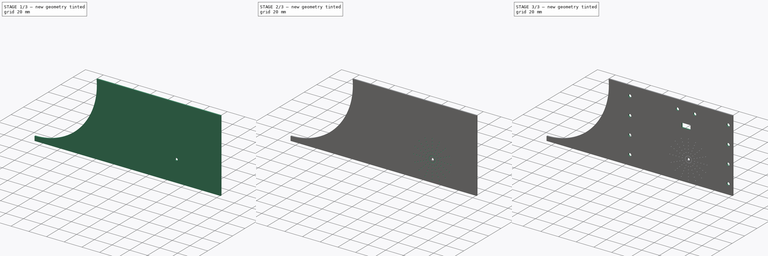
[diagram: build sequence overview — one tinted view per stage of 3, left to right]
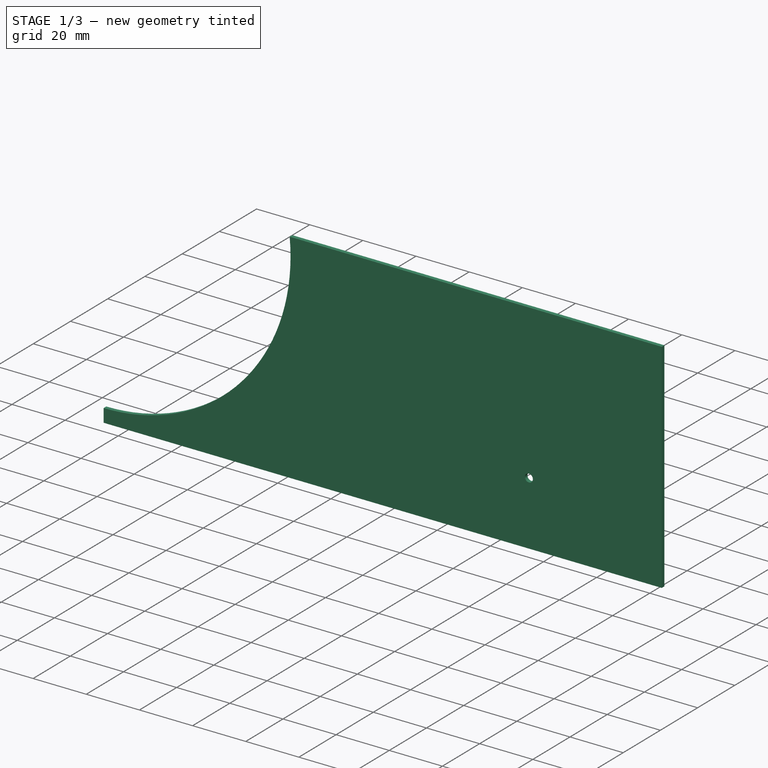
[diagram: stage 1 of 3 — iso view after this stage's code; geometry added in this stage tinted green]
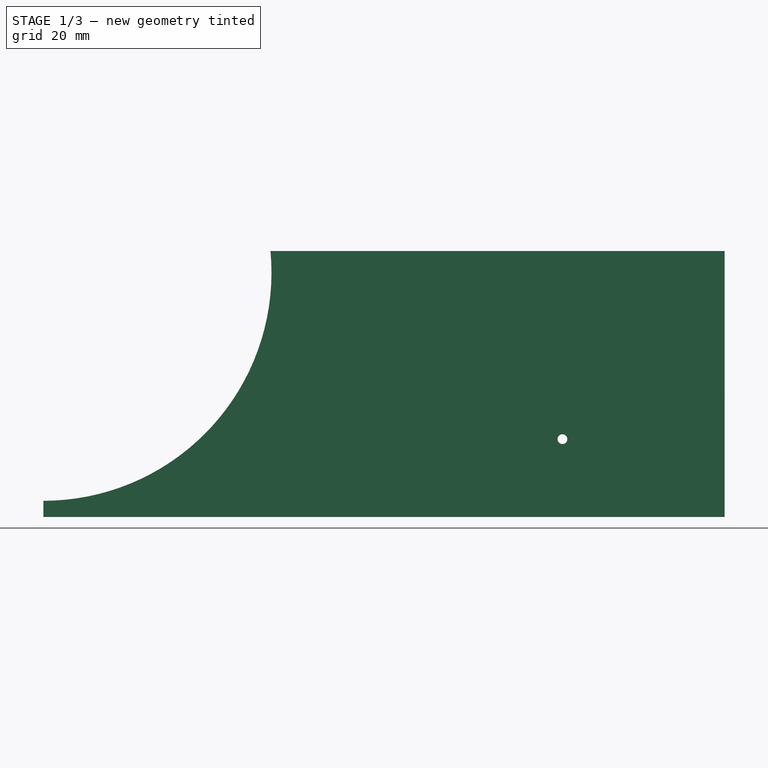
[diagram: stage 1 of 3 — front view after this stage's code; geometry added in this stage tinted green]
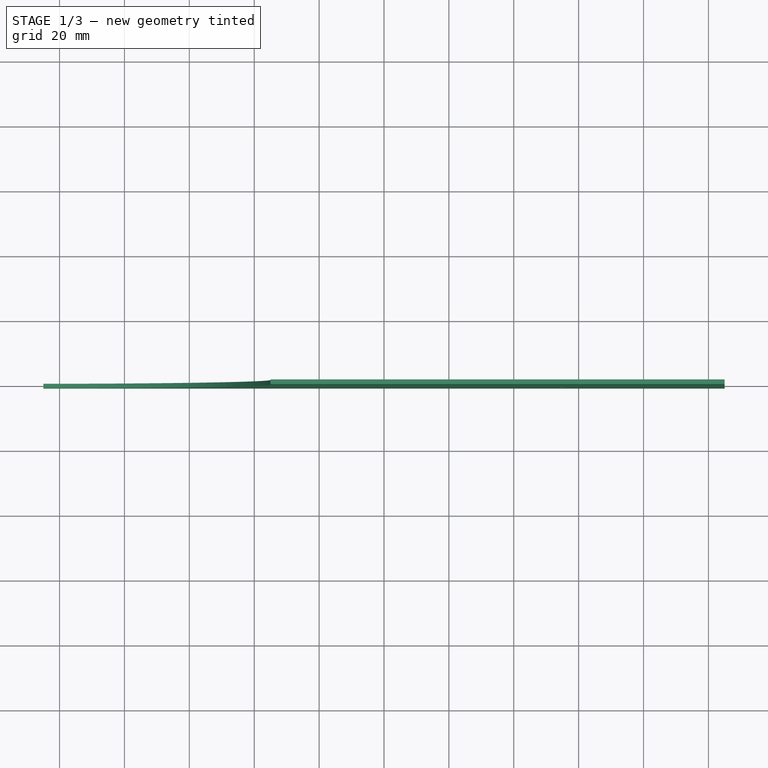
[diagram: stage 1 of 3 — top view after this stage's code; geometry added in this stage tinted green]
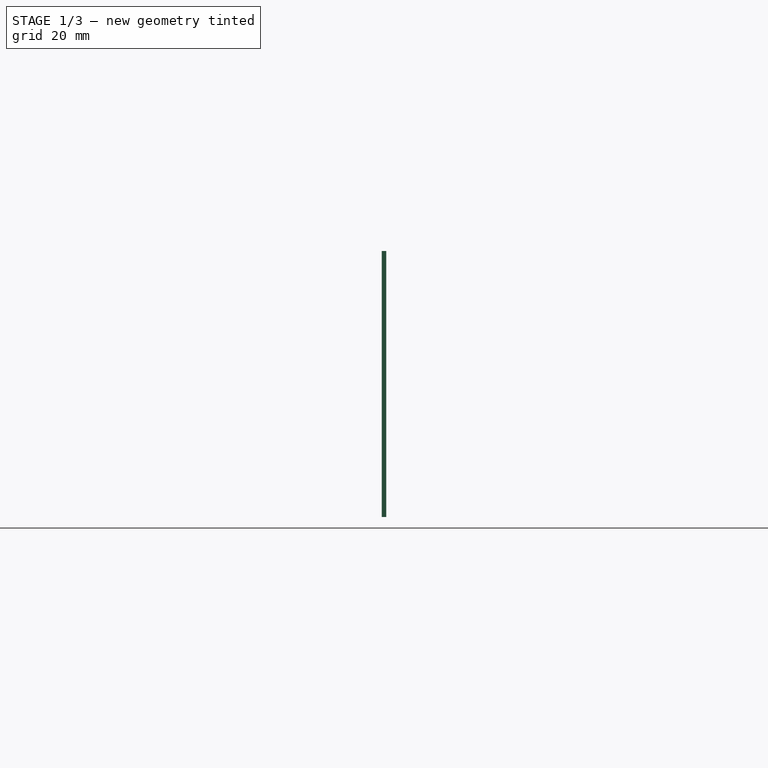
[diagram: stage 1 of 3 — right view after this stage's code; geometry added in this stage tinted green]
FCSTD DOCUMENT  (FreeCAD 1.0R39109 (Git))
Label: wall_curve_speaker
License: All rights reserved
LicenseURL: https://en.wikipedia.org/wiki/All_rights_reserved
objects: Sketcher::SketchObject×6, PartDesign::Pocket×4, PartDesign::Pad×1, PartDesign::Line×1, PartDesign::PolarPattern×1, PartDesign::Body×1
note: 31 computed .brp shape members not serialized (recipe doc carries the construction recipe); baked Part::Feature solids carry a one-line shape summary decoded from their .brp

FEATURE [Sketcher::SketchObject] Sketch
  ArcFitTolerance = 1e-06
  AttachmentSupport = -> [XZ_Plane]
  FullyConstrained = true
  MakeInternals = false
  MapMode = 5
  Placement = pos=(0,0,0) rot=(1,0,0;1.5708rad)
  sketch-geometry (15):
    g0: LineSegment [constr] StartX=-105 StartY=40 StartZ=0 EndX=-105 EndY=-40 EndZ=0
    g1: LineSegment [constr] StartX=-105 StartY=-40 StartZ=0 EndX=105 EndY=-40 EndZ=0
    g2: LineSegment [constr] StartX=105 StartY=-40 StartZ=0 EndX=105 EndY=40 EndZ=0
    g3: LineSegment [constr] StartX=105 StartY=40 StartZ=0 EndX=-105 EndY=40 EndZ=0
    g4: GeomPoint [constr] X=0 Y=0 Z=0
    g5: LineSegment [constr] StartX=-105 StartY=41 StartZ=0 EndX=-105 EndY=-41 EndZ=0
    g6: LineSegment [constr] StartX=-105 StartY=-41 StartZ=0 EndX=105 EndY=-41 EndZ=0
    g7: LineSegment [constr] StartX=105 StartY=-41 StartZ=0 EndX=105 EndY=41 EndZ=0
    g8: LineSegment [constr] StartX=105 StartY=41 StartZ=0 EndX=-105 EndY=41 EndZ=0
    g9: GeomPoint [constr] X=0 Y=0 Z=0
    g10: LineSegment StartX=-105 StartY=-41 StartZ=0 EndX=-105 EndY=-36 EndZ=0
    g11: ArcOfCircle CenterX=-105 CenterY=34.3182 CenterZ=0 NormalX=0 NormalY=0 NormalZ=1 AngleXU=0 Radius=70.3182 StartAngle=4.71239 EndAngle=6.37835
    g12: LineSegment StartX=-35 StartY=41 StartZ=0 EndX=105 EndY=41 EndZ=0
    g13: LineSegment StartX=105 StartY=41 StartZ=0 EndX=105 EndY=-41 EndZ=0
    g14: LineSegment StartX=105 StartY=-41 StartZ=0 EndX=-105 EndY=-41 EndZ=0
  constraints (37):
    c: Coincident(g0,g1)
    c: Coincident(g1,g2)
    c: Coincident(g2,g3)
    c: Coincident(g3,g0)
    c: Vertical(g0)
    c: Vertical(g2)
    c: Horizontal(g1)
    c: Horizontal(g3)
    c: Symmetric(g2,g0,g4)
    c: Coincident(g4,g-1)
    c: Coincident(g5,g6)
    c: Coincident(g6,g7)
    c: Coincident(g7,g8)
    c: Coincident(g8,g5)
    c: Vertical(g5)
    c: Vertical(g7)
    c: Horizontal(g6)
    c: Horizontal(g8)
    c: Symmetric(g7,g5,g9)
    c: Coincident(g9,g4)
    c: Vertical(g6,g1)
    c: DistanceY(g2,g2) = 80
    c: DistanceY(g6,g1) = 1
    c: DistanceX(g8,g8) = 210
    c: Coincident(g5,g10)
    c: PointOnObject(g10,g0)
    c: Perpendicular(g10,g11) = 4.71239
    c: Coincident(g11,g12)
    c: PointOnObject(g12,g2)
    c: Horizontal(g12)
    c: Coincident(g12,g13)
    c: Coincident(g13,g6)
    c: Coincident(g13,g14)
    c: Coincident(g14,g10)
    c: PointOnObject(g11,g8)
    c: DistanceX(g12,g12) = 140
    c: DistanceY(g10,g10) = 5
FEATURE [PartDesign::Pad] Pad  label="BasePad"
  Direction = (0,-1,2e-16)
  Length = 0.7
  Length2 = 0.7
  Placement = pos=(0,0,0) rot=(1,0,0;1.5708rad)
  Profile = -> Sketch
  ReferenceAxis = -> Sketch [N_Axis]
  Refine = true
  Suppressed = false
  Type = 4
FEATURE [Sketcher::SketchObject] Sketch001
  ArcFitTolerance = 1e-06
  AttachmentSupport = -> [Pad]
  ExternalGeometry = -> [Pad]
  FullyConstrained = true
  MakeInternals = false
  MapMode = 5
  Placement = pos=(0,-0.7,0) rot=(1,0,0;1.5708rad)
  sketch-geometry (4):
    g0: LineSegment [constr] StartX=105 StartY=-41 StartZ=0 EndX=90 EndY=-41 EndZ=0
    g1: LineSegment [constr] StartX=90 StartY=-41 StartZ=0 EndX=20 EndY=-41 EndZ=0
    g2: Circle CenterX=55 CenterY=-17 CenterZ=0 NormalX=0 NormalY=0 NormalZ=1 AngleXU=0 Radius=1.5
    g3: GeomPoint X=55 Y=-41 Z=0
  constraints (10):
    c: Coincident(g-3,g0)
    c: PointOnObject(g0,g-3)
    c: Coincident(g0,g1)
    c: PointOnObject(g1,g-3)
    c: DistanceX(g0,g0) = 15
    c: DistanceX(g1,g1) = 70
    c: Symmetric(g1,g1,g3)
    c: Vertical(g3,g2)
    c: DistanceY(g3,g2) = 24
    c: Radius(g2) = 1.5
FEATURE [PartDesign::Pocket] Pocket  label="MainSpeakerPocket"
  BaseFeature = -> Pad
  Direction = (0,1,-2e-16)
  Length = 5
  Length2 = 5
  Placement = pos=(0,0,0) rot=(1,0,0;1.5708rad)
  Profile = -> Sketch001
  ReferenceAxis = -> Sketch001 [N_Axis]
  Refine = true
  Suppressed = false
  Type = 1
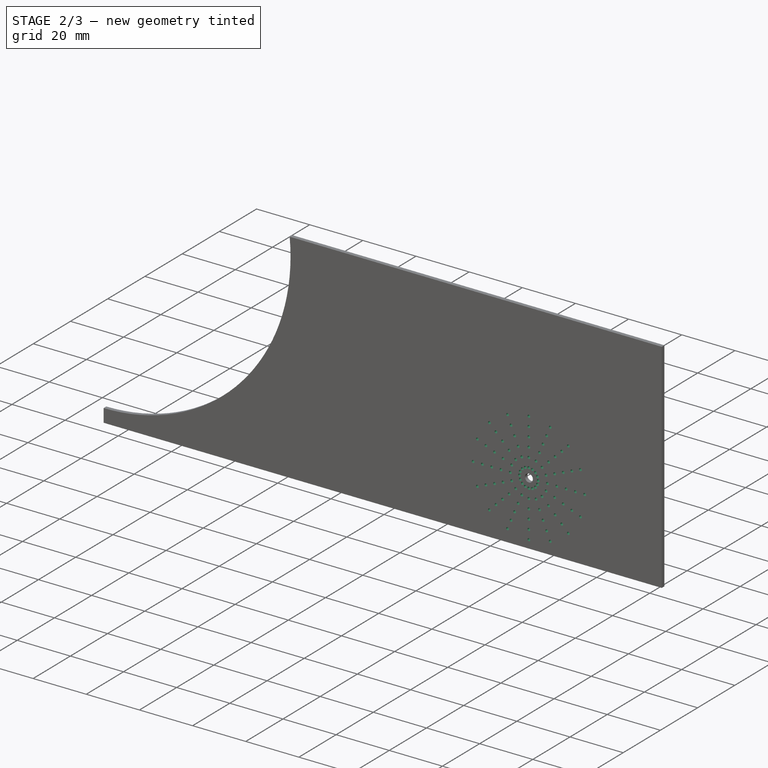
[diagram: stage 2 of 3 — iso view after this stage's code; geometry added in this stage tinted green]
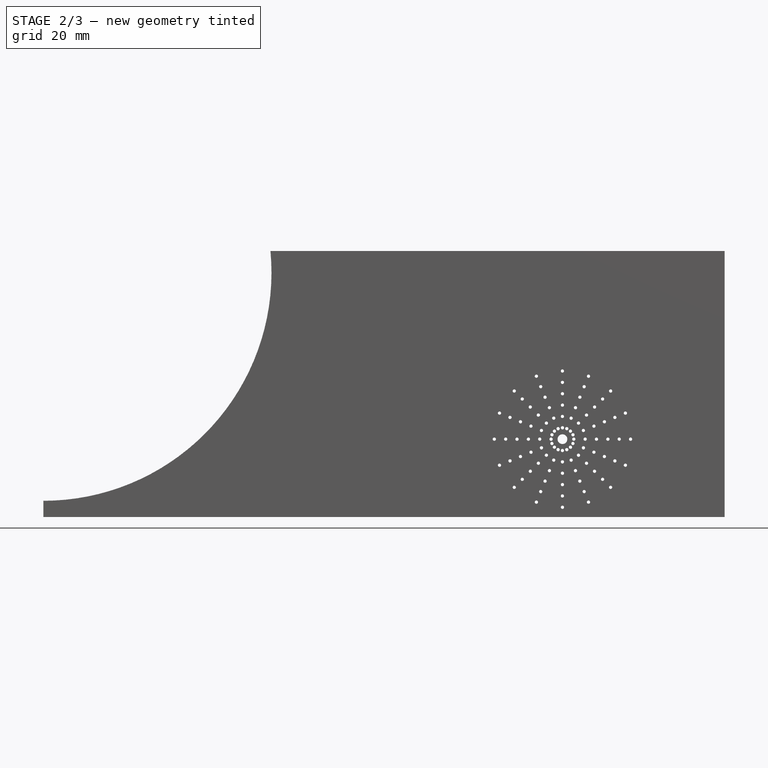
[diagram: stage 2 of 3 — front view after this stage's code; geometry added in this stage tinted green]
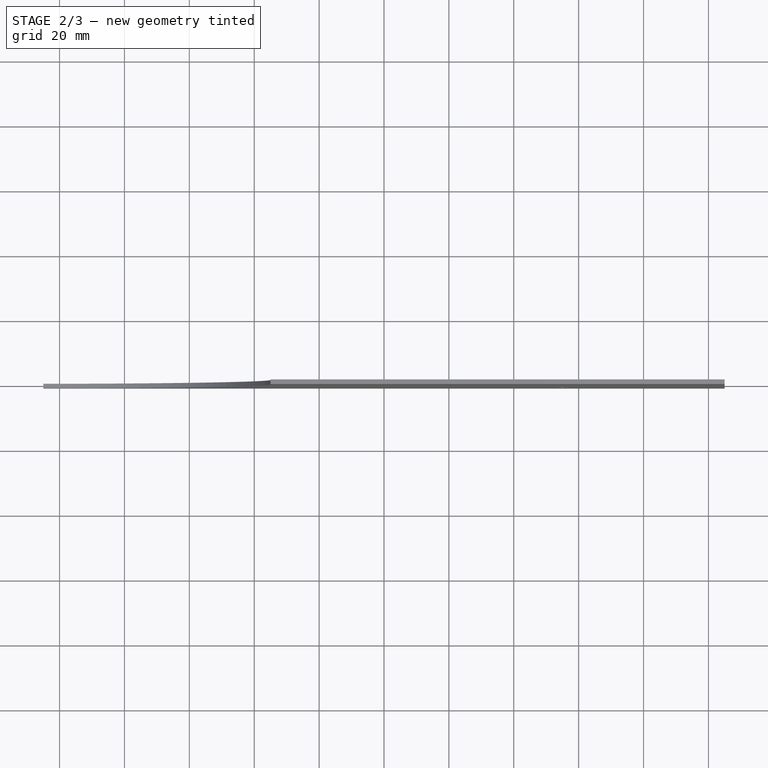
[diagram: stage 2 of 3 — top view after this stage's code; geometry added in this stage tinted green]
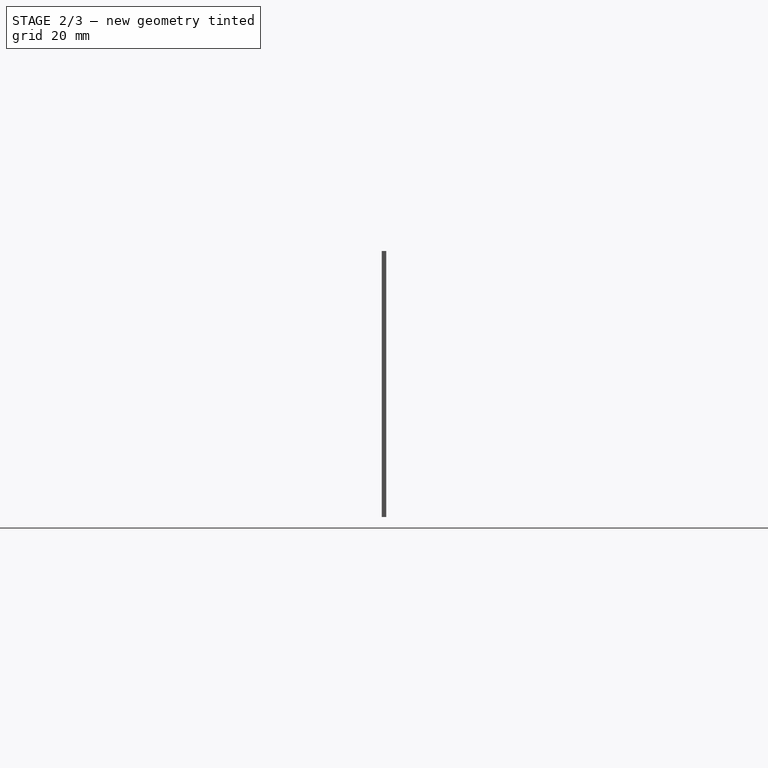
[diagram: stage 2 of 3 — right view after this stage's code; geometry added in this stage tinted green]
FEATURE [Sketcher::SketchObject] Sketch002
  ArcFitTolerance = 1e-06
  AttachmentSupport = -> [Pocket]
  ExternalGeometry = -> [Pocket]
  FullyConstrained = true
  MakeInternals = false
  MapMode = 5
  Placement = pos=(0,-0.7,0) rot=(1,0,0;1.5708rad)
  sketch-geometry (12):
    g0: Circle CenterX=55 CenterY=-20.5 CenterZ=0 NormalX=0 NormalY=0 NormalZ=1 AngleXU=0 Radius=0.5
    g1: Circle CenterX=55 CenterY=-24 CenterZ=0 NormalX=0 NormalY=0 NormalZ=1 AngleXU=0 Radius=0.5
    g2: Circle CenterX=55 CenterY=-27.5 CenterZ=0 NormalX=0 NormalY=0 NormalZ=1 AngleXU=0 Radius=0.5
    g3: Circle CenterX=55 CenterY=-31 CenterZ=0 NormalX=0 NormalY=0 NormalZ=1 AngleXU=0 Radius=0.5
    g4: Circle CenterX=55 CenterY=-34.5 CenterZ=0 NormalX=0 NormalY=0 NormalZ=1 AngleXU=0 Radius=0.5
    g5: LineSegment [constr] StartX=55 StartY=-17 StartZ=0 EndX=55 EndY=-20.5 EndZ=0
    g6: LineSegment [constr] StartX=55 StartY=-20.5 StartZ=0 EndX=55 EndY=-24 EndZ=0
    g7: LineSegment [constr] StartX=55 StartY=-24 StartZ=0 EndX=55 EndY=-27.5 EndZ=0
    g8: LineSegment [constr] StartX=55 StartY=-27.5 StartZ=0 EndX=55 EndY=-31 EndZ=0
    g9: LineSegment [constr] StartX=55 StartY=-31 StartZ=0 EndX=55 EndY=-34.5 EndZ=0
    g10: LineSegment [constr] StartX=55 StartY=-34.5 StartZ=0 EndX=55 EndY=-38 EndZ=0
    g11: Circle CenterX=55 CenterY=-38 CenterZ=0 NormalX=0 NormalY=0 NormalZ=1 AngleXU=0 Radius=0.5
  constraints (30):
    c: Coincident(g5,g-3)
    c: Coincident(g5,g0)
    c: Coincident(g5,g6)
    c: Coincident(g6,g1)
    c: Vertical(g6)
    c: Coincident(g6,g7)
    c: Coincident(g7,g2)
    c: Coincident(g7,g8)
    c: Coincident(g8,g3)
    c: Coincident(g8,g9)
    c: Coincident(g9,g4)
    c: Vertical(g5)
    c: Vertical(g7)
    c: Vertical(g8)
    c: Vertical(g9)
    c: Equal(g9,g8)
    c: Equal(g8,g7)
    c: Equal(g7,g6)
    c: Equal(g6,g5)
    c: Equal(g0,g1)
    c: Equal(g1,g2)
    c: Equal(g2,g3)
    c: Equal(g3,g4)
    c: Radius(g4) = 0.5
    c: Coincident(g10,g4)
    c: Vertical(g10)
    c: Coincident(g11,g10)
    c: Equal(g11,g4)
    c: DistanceY(g10,g10) = 3.5
    c: Equal(g10,g9)
FEATURE [PartDesign::Pocket] Pocket001  label="SpeakerPatternPocket"
  BaseFeature = -> Pocket
  Direction = (0,1,-2e-16)
  Length = 5
  Length2 = 5
  Placement = pos=(0,0,0) rot=(1,0,0;1.5708rad)
  Profile = -> Sketch002
  ReferenceAxis = -> Sketch002 [N_Axis]
  Refine = true
  Suppressed = false
  Type = 1
FEATURE [PartDesign::Line] DatumLine
  AttacherType = Attacher::AttachEngineLine
  AttachmentSupport = -> [Pocket001]
  Length = 20
  MapMode = 19
  Placement = pos=(55,-0.7,-17) rot=(1,0,0;1.5708rad)
  ResizeMode = 0
FEATURE [PartDesign::PolarPattern] PolarPattern  label="SpeakerPattern"
  Angle = 360
  Axis = -> DatumLine
  BaseFeature = -> Pocket001
  Mode = 0
  Occurrences = 16
  Offset = 120
  Originals = -> [Pocket001]
  Placement = pos=(0,0,0) rot=(1,0,0;1.5708rad)
  Refine = true
  Suppressed = false
  TransformMode = 0
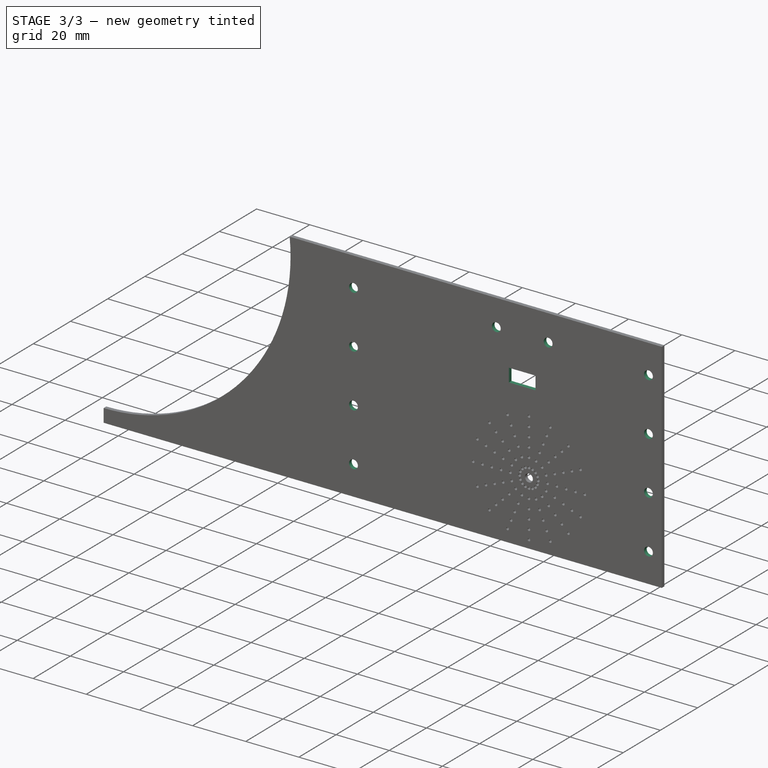
[diagram: stage 3 of 3 — iso view after this stage's code; geometry added in this stage tinted green]
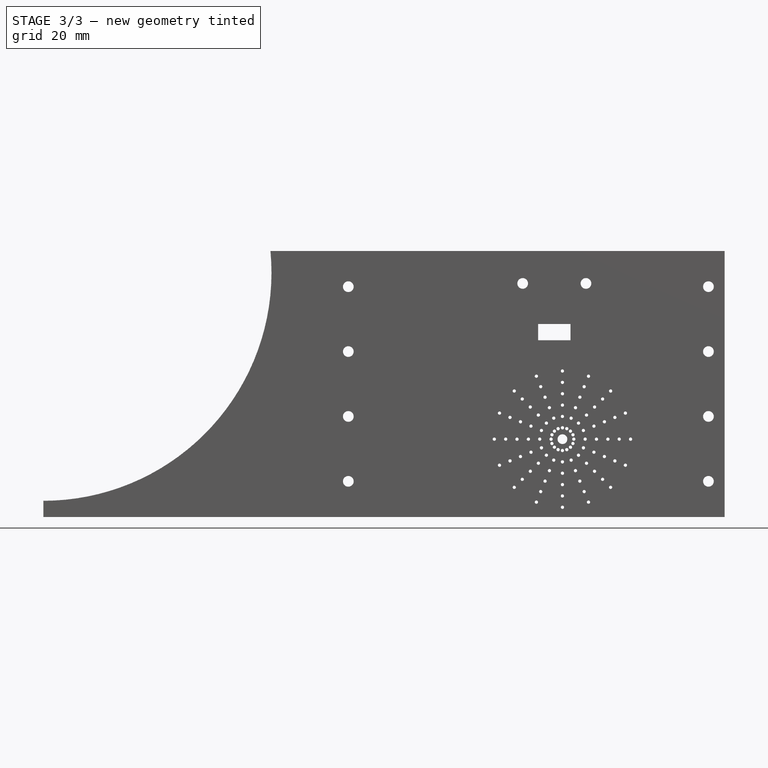
[diagram: stage 3 of 3 — front view after this stage's code; geometry added in this stage tinted green]
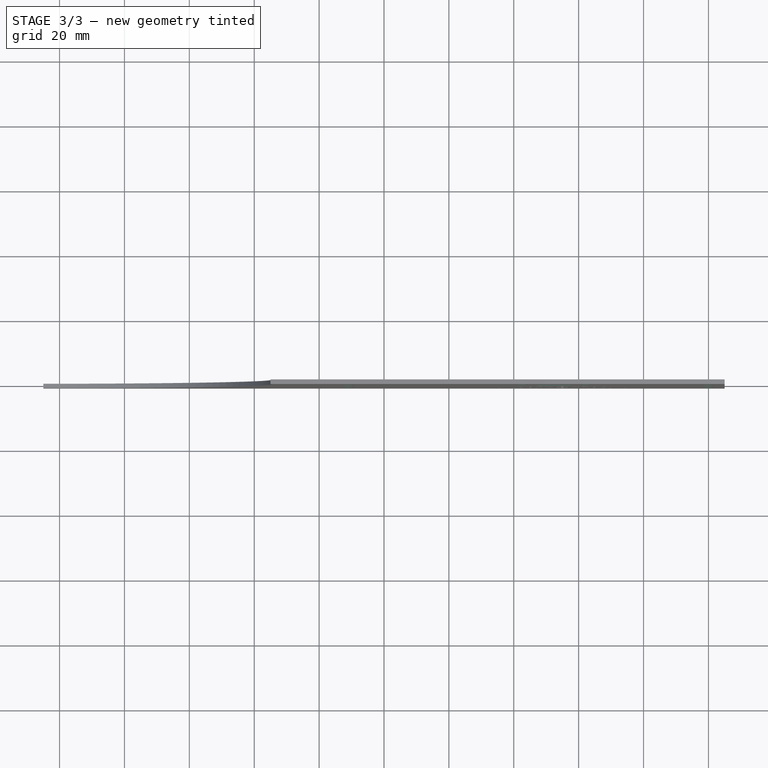
[diagram: stage 3 of 3 — top view after this stage's code; geometry added in this stage tinted green]
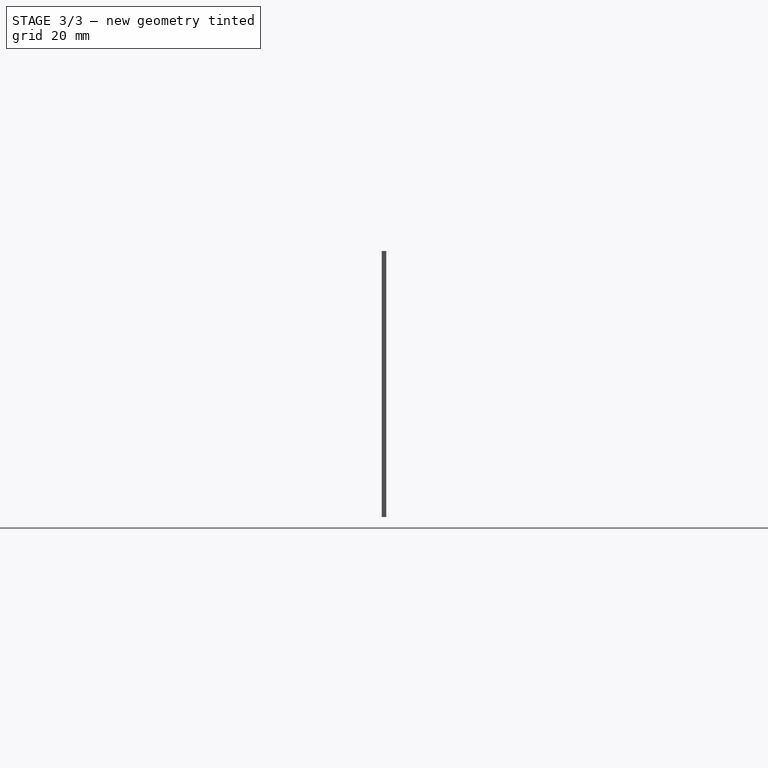
[diagram: stage 3 of 3 — right view after this stage's code; geometry added in this stage tinted green]
FEATURE [Sketcher::SketchObject] Sketch003
  ArcFitTolerance = 1e-06
  AttachmentSupport = -> [PolarPattern]
  ExternalGeometry = -> [PolarPattern]
  FullyConstrained = false
  MakeInternals = false
  MapMode = 5
  Placement = pos=(0,-0.7,0) rot=(1,0,0;1.5708rad)
  sketch-geometry (14):
    g0: LineSegment [constr] StartX=-105 StartY=40 StartZ=0 EndX=-105 EndY=-40 EndZ=0
    g1: LineSegment [constr] StartX=-105 StartY=-40 StartZ=0 EndX=105 EndY=-40 EndZ=0
    g2: LineSegment [constr] StartX=105 StartY=-40 StartZ=0 EndX=105 EndY=40 EndZ=0
    g3: LineSegment [constr] StartX=105 StartY=40 StartZ=0 EndX=-105 EndY=40 EndZ=0
    g4: GeomPoint [constr] X=0 Y=0 Z=0
    g5: Circle CenterX=100 CenterY=30 CenterZ=0 NormalX=0 NormalY=0 NormalZ=1 AngleXU=0 Radius=1.65
    g6: Circle CenterX=100 CenterY=10 CenterZ=0 NormalX=0 NormalY=0 NormalZ=1 AngleXU=0 Radius=1.65
    g7: Circle CenterX=-11 CenterY=30 CenterZ=0 NormalX=0 NormalY=0 NormalZ=1 AngleXU=0 Radius=1.65
    g8: Circle CenterX=-11 CenterY=10 CenterZ=0 NormalX=0 NormalY=0 NormalZ=1 AngleXU=0 Radius=1.65
    g9: Circle CenterX=100 CenterY=-30 CenterZ=0 NormalX=0 NormalY=0 NormalZ=1 AngleXU=0 Radius=1.65
    g10: Circle CenterX=100 CenterY=-10 CenterZ=0 NormalX=0 NormalY=0 NormalZ=1 AngleXU=0 Radius=1.65
    g11: Circle CenterX=-11 CenterY=-30 CenterZ=0 NormalX=0 NormalY=0 NormalZ=1 AngleXU=0 Radius=1.65
    g12: Circle CenterX=-11 CenterY=-10 CenterZ=0 NormalX=0 NormalY=0 NormalZ=1 AngleXU=0 Radius=1.65
    g13: LineSegment [constr] StartX=105 StartY=-40 StartZ=0 EndX=-105 EndY=-40 EndZ=0
  constraints (33):
    c: Coincident(g0,g1)
    c: Coincident(g1,g2)
    c: Coincident(g2,g3)
    c: Coincident(g3,g0)
    c: Vertical(g0)
    c: Vertical(g2)
    c: Horizontal(g1)
    c: Horizontal(g3)
    c: Symmetric(g2,g0,g4)
    c: Coincident(g4,g-1)
    c: DistanceY(g2,g2) = 80
    c: Vertical(g2,g-3)
    c: Vertical(g8,g7)
    c: Equal(g8,g7)
    c: Equal(g7,g5)
    c: Equal(g5,g6)
    c: Radius(g6) = 1.65
    c: Vertical(g5,g6)
    c: DistanceX(g5,g2) = 5
    c: DistanceY(g5,g2) = 10
    c: DistanceY(g6,g5) = 20
    c: Horizontal(g8,g6)
    c: Horizontal(g5,g7)
    c: DistanceX(g7,g5) = 111
    c: Horizontal(g13)
    c: Equal(g12,g11)
    c: Equal(g11,g9)
    c: Equal(g9,g10)
    c: Radius(g10) = 1.65
    c: Symmetric(g12,g8,g-1)
    c: Symmetric(g11,g7,g-1)
    c: Symmetric(g5,g9,g-1)
    c: Symmetric(g10,g6,g-1)
FEATURE [PartDesign::Pocket] Pocket002  label="ScrewPocket"
  BaseFeature = -> PolarPattern
  Direction = (0,1,-2e-16)
  Length = 5
  Length2 = 5
  Placement = pos=(0,0,0) rot=(1,0,0;1.5708rad)
  Profile = -> Sketch003
  ReferenceAxis = -> Sketch003 [N_Axis]
  Refine = true
  Suppressed = false
  Type = 1
FEATURE [Sketcher::SketchObject] Sketch004
  ArcFitTolerance = 1e-06
  AttachmentSupport = -> [Pocket002]
  FullyConstrained = true
  MakeInternals = false
  MapMode = 5
  Placement = pos=(0,-0.7,0) rot=(1,0,0;1.5708rad)
FEATURE [Sketcher::SketchObject] Sketch005
  ArcFitTolerance = 1e-06
  AttachmentSupport = -> [Pocket002]
  ExternalGeometry = -> [Pocket002]
  FullyConstrained = true
  MakeInternals = false
  MapMode = 5
  Placement = pos=(0,-0.7,0) rot=(1,0,0;1.5708rad)
  sketch-geometry (11):
    g0: LineSegment [constr] StartX=0 StartY=41 StartZ=0 EndX=105 EndY=41 EndZ=0
    g1: GeomPoint [constr] X=52.5 Y=41 Z=0
    g2: Circle CenterX=42.75 CenterY=31 CenterZ=0 NormalX=0 NormalY=0 NormalZ=1 AngleXU=0 Radius=1.65
    g3: Circle CenterX=62.25 CenterY=31 CenterZ=0 NormalX=0 NormalY=0 NormalZ=1 AngleXU=0 Radius=1.65
    g4: LineSegment [constr] StartX=42.75 StartY=31 StartZ=0 EndX=62.25 EndY=31 EndZ=0
    g5: GeomPoint X=52.5 Y=31 Z=0
    g6: LineSegment StartX=47.5 StartY=13.5 StartZ=0 EndX=47.5 EndY=18.5 EndZ=0
    g7: LineSegment StartX=47.5 StartY=18.5 StartZ=0 EndX=57.5 EndY=18.5 EndZ=0
    g8: LineSegment StartX=57.5 StartY=18.5 StartZ=0 EndX=57.5 EndY=13.5 EndZ=0
    g9: LineSegment StartX=57.5 StartY=13.5 StartZ=0 EndX=47.5 EndY=13.5 EndZ=0
    g10: GeomPoint [constr] X=52.5 Y=16 Z=0
  constraints (26):
    c: PointOnObject(g0,g-2)
    c: Coincident(g0,g-3)
    c: Horizontal(g0)
    c: Symmetric(g0,g0,g1)
    c: DistanceX(g2,g3) = 19.5
    c: Coincident(g4,g2)
    c: Coincident(g4,g3)
    c: Horizontal(g4)
    c: Symmetric(g4,g4,g5)
    c: Vertical(g5,g1)
    c: Radius(g3) = 1.65
    c: Equal(g2,g3)
    c: DistanceY(g5,g1) = 10
    c: Coincident(g6,g7)
    c: Coincident(g7,g8)
    c: Coincident(g8,g9)
    c: Coincident(g9,g6)
    c: Vertical(g6)
    c: Vertical(g8)
    c: Horizontal(g7)
    c: Horizontal(g9)
    c: Symmetric(g8,g6,g10)
    c: DistanceY(g10,g5) = 15
    c: DistanceX(g7,g7) = 10
    c: DistanceY(g8,g8) = 5
    c: Vertical(g10,g5)
FEATURE [PartDesign::Pocket] Pocket003  label="TouchPocket"
  BaseFeature = -> Pocket002
  Direction = (0,1,-2e-16)
  Length = 5
  Length2 = 5
  Placement = pos=(0,0,0) rot=(1,0,0;1.5708rad)
  Profile = -> Sketch005
  ReferenceAxis = -> Sketch005 [N_Axis]
  Refine = true
  Suppressed = false
  Type = 0
FEATURE [PartDesign::Body] Body  label="wall_curve_speaker"
  AllowCompound = false
  Group = -> [Sketch,Pad,Sketch001,Pocket,Sketch002,Pocket001,DatumLine,PolarPattern,Sketch003,Pocket002,Sketch004,Sketch005,Pocket003]
  Origin = -> Origin
  Tip = -> Pocket003
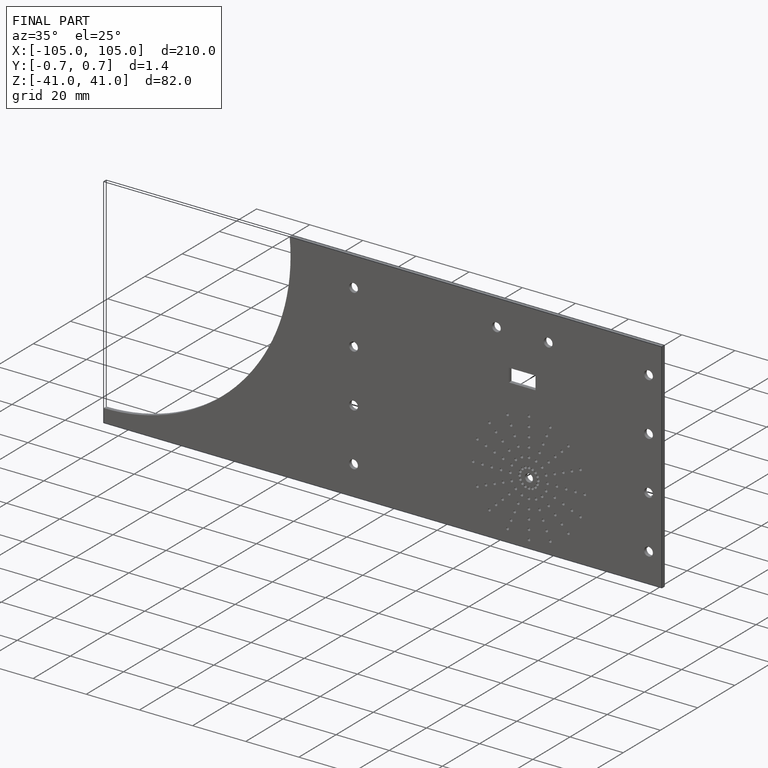
[diagram: finished part — iso view with bounding-box wireframe]
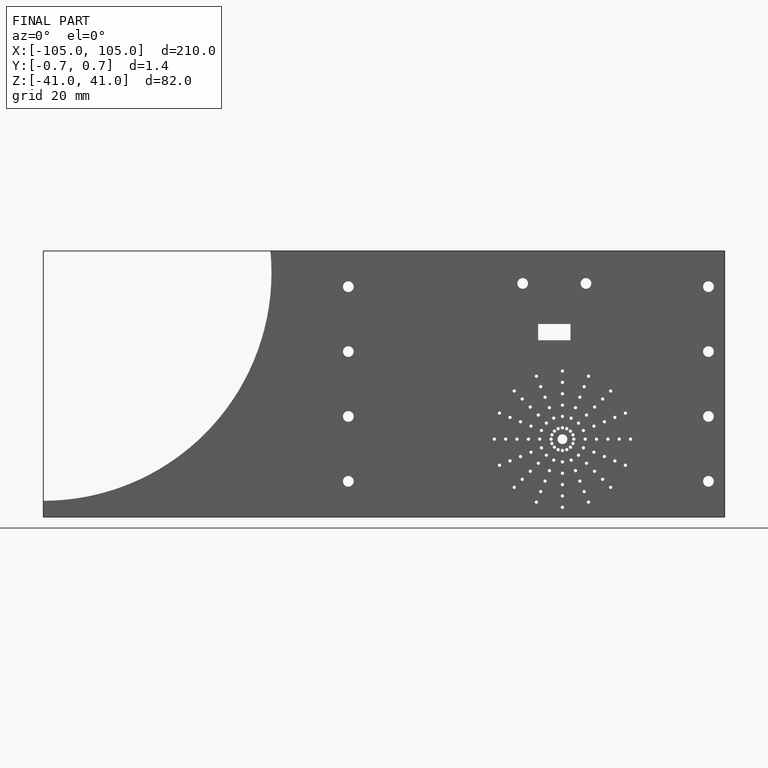
[diagram: finished part — front view with bounding-box wireframe]
